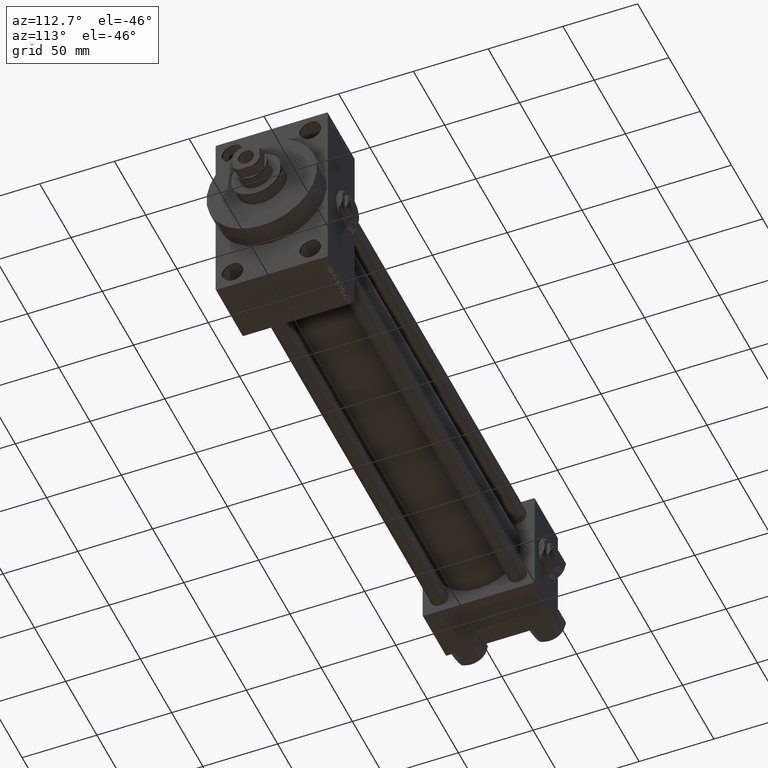
[diagram: clean part render]
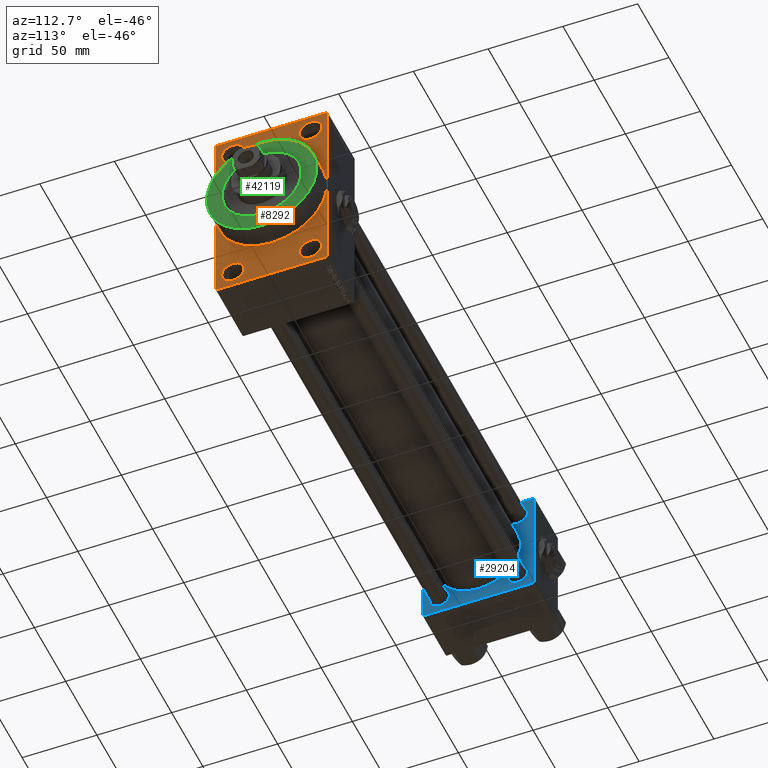
[diagram: same view with three faces highlighted in distinct colors, each labeled with its STEP entity id]
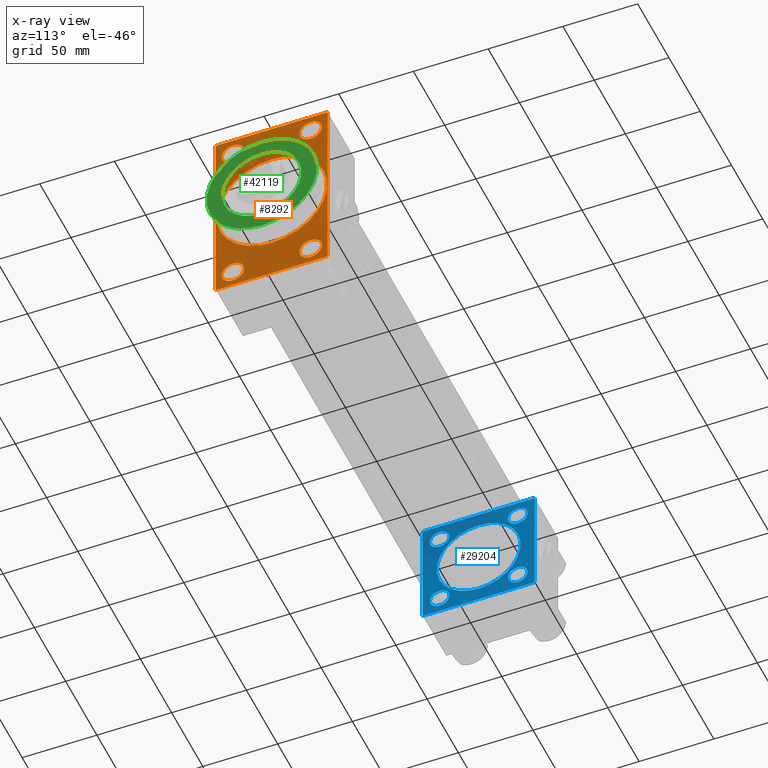
[diagram: x-ray of the same camera — body ghosted, the three highlighted faces saturated]
A machine part, auxiliary view with three faces highlighted in distinct colors.
The next image is the same camera in x-ray (body ghosted, the three faces saturated) — at least one of them is partly hidden behind the body in this view.
Their STEP definitions:

[orange] entity #8292 — the highlighted planar face has unit normal (-1, 0, 0).
#922 = CARTESIAN_POINT ( 'NONE',  ( 367.9999999999999432, -37.49999999999999289, 63.49999999999991473 ) ) ;
#1266 = DIRECTION ( 'NONE',  ( -1.000000000000000000, 0.000000000000000000, -0.000000000000000000 ) ) ;
#1393 = CARTESIAN_POINT ( 'NONE',  ( 367.9999999999999432, -36.99999999999992895, 63.99999999999997158 ) ) ;
#1746 = CIRCLE ( 'NONE', #9716, 7.500000000000062172 ) ;
#1840 = CARTESIAN_POINT ( 'NONE',  ( 367.9999999999999432, 26.00000000000000000, 52.49999999999999289 ) ) ;
#2036 = ORIENTED_EDGE ( 'NONE', *, *, #13621, .T. ) ;
#3274 = FACE_BOUND ( 'NONE', #24315, .T. ) ;
#3364 = VERTEX_POINT ( 'NONE', #26069 ) ;
#3467 = EDGE_CURVE ( 'NONE', #29100, #29794, #47911, .T. ) ;
#3680 = EDGE_CURVE ( 'NONE', #8606, #42703, #4164, .T. ) ;
#4164 = CIRCLE ( 'NONE', #28811, 7.500000000000062172 ) ;
#4853 = DIRECTION ( 'NONE',  ( 0.000000000000000000, 0.000000000000000000, 1.000000000000000000 ) ) ;
#4943 = AXIS2_PLACEMENT_3D ( 'NONE', #19308, #38965, #4853 ) ;
#5241 = CARTESIAN_POINT ( 'NONE',  ( 367.9999999999999432, 37.50000000000000000, 63.99999999999998579 ) ) ;
#5938 = CIRCLE ( 'NONE', #35368, 7.500000000000062172 ) ;
#5943 = VERTEX_POINT ( 'NONE', #35843 ) ;
#6713 = ORIENTED_EDGE ( 'NONE', *, *, #25525, .T. ) ;
#7065 = ORIENTED_EDGE ( 'NONE', *, *, #12248, .T. ) ;
#7091 = DIRECTION ( 'NONE',  ( 1.000000000000000000, 0.000000000000000000, 0.000000000000000000 ) ) ;
#7334 = DIRECTION ( 'NONE',  ( 0.000000000000000000, 0.000000000000000000, -1.000000000000000000 ) ) ;
#7496 = VERTEX_POINT ( 'NONE', #922 ) ;
#7528 = FACE_BOUND ( 'NONE', #23030, .T. ) ;
#8292 = ADVANCED_FACE ( 'NONE', ( #3274, #34629, #41639, #7528, #15704, #22709 ), #30188, .F. ) ;
#8606 = VERTEX_POINT ( 'NONE', #41212 ) ;
#9119 = LINE ( 'NONE', #31777, #44603 ) ;
#9637 = CARTESIAN_POINT ( 'NONE',  ( 367.9999999999999432, 26.00000000000000000, 60.00000000000005684 ) ) ;
#9716 = AXIS2_PLACEMENT_3D ( 'NONE', #9847, #40221, #24548 ) ;
#9847 = CARTESIAN_POINT ( 'NONE',  ( 367.9999999999999432, -25.99999999999999645, 52.50000000000000000 ) ) ;
#10646 = CARTESIAN_POINT ( 'NONE',  ( 367.9999999999999432, -36.99999999999993605, -64.00000000000001421 ) ) ;
#11015 = VECTOR ( 'NONE', #33118, 1000.000000000000000 ) ;
#11073 = VERTEX_POINT ( 'NONE', #48581 ) ;
#11303 = CARTESIAN_POINT ( 'NONE',  ( 367.9999999999999432, 36.99999999999994316, 63.99999999999998579 ) ) ;
#11439 = DIRECTION ( 'NONE',  ( 0.000000000000000000, 0.000000000000000000, 1.000000000000000000 ) ) ;
#11625 = CIRCLE ( 'NONE', #35454, 7.500000000000062172 ) ;
#12037 = DIRECTION ( 'NONE',  ( -1.000000000000000000, 0.000000000000000000, -0.000000000000000000 ) ) ;
#12248 = EDGE_CURVE ( 'NONE', #20474, #41105, #5938, .T. ) ;
#12470 = CARTESIAN_POINT ( 'NONE',  ( 367.9999999999999432, 37.50000000000000000, 63.49999999999998579 ) ) ;
#12708 = ORIENTED_EDGE ( 'NONE', *, *, #38779, .F. ) ;
#12863 = CARTESIAN_POINT ( 'NONE',  ( 367.9999999999999432, 4.531193156845206793E-15, -37.00000000000000000 ) ) ;
#13234 = VECTOR ( 'NONE', #37083, 1000.000000000000000 ) ;
#13279 = DIRECTION ( 'NONE',  ( 0.000000000000000000, 0.000000000000000000, -1.000000000000000000 ) ) ;
#13475 = AXIS2_PLACEMENT_3D ( 'NONE', #29743, #7091, #7334 ) ;
#13621 = EDGE_CURVE ( 'NONE', #42703, #8606, #16313, .T. ) ;
#14237 = EDGE_CURVE ( 'NONE', #29794, #29100, #45047, .T. ) ;
#14651 = ORIENTED_EDGE ( 'NONE', *, *, #14237, .T. ) ;
#14820 = CIRCLE ( 'NONE', #21157, 37.00000000000000000 ) ;
#14940 = CARTESIAN_POINT ( 'NONE',  ( 367.9999999999999432, 26.00000000000000000, -52.49999999999999289 ) ) ;
#15014 = DIRECTION ( 'NONE',  ( 1.000000000000000000, 0.000000000000000000, 0.000000000000000000 ) ) ;
#15704 = FACE_BOUND ( 'NONE', #40985, .T. ) ;
#15707 = ORIENTED_EDGE ( 'NONE', *, *, #27860, .T. ) ;
#16313 = CIRCLE ( 'NONE', #29856, 7.500000000000062172 ) ;
#16464 = DIRECTION ( 'NONE',  ( 0.000000000000000000, 0.000000000000000000, 1.000000000000000000 ) ) ;
#16753 = ORIENTED_EDGE ( 'NONE', *, *, #28570, .F. ) ;
#17289 = DIRECTION ( 'NONE',  ( 0.000000000000000000, 0.000000000000000000, 1.000000000000000000 ) ) ;
#17745 = CARTESIAN_POINT ( 'NONE',  ( 367.9999999999999432, 0.000000000000000000, 0.000000000000000000 ) ) ;
#17962 = AXIS2_PLACEMENT_3D ( 'NONE', #14940, #18166, #11439 ) ;
#17998 = ORIENTED_EDGE ( 'NONE', *, *, #3680, .T. ) ;
#18166 = DIRECTION ( 'NONE',  ( -1.000000000000000000, 0.000000000000000000, -0.000000000000000000 ) ) ;
#18676 = VERTEX_POINT ( 'NONE', #20612 ) ;
#18751 = DIRECTION ( 'NONE',  ( 0.000000000000000000, 0.000000000000000000, -1.000000000000000000 ) ) ;
#19203 = DIRECTION ( 'NONE',  ( -0.000000000000000000, 0.000000000000000000, 1.000000000000000000 ) ) ;
#19308 = CARTESIAN_POINT ( 'NONE',  ( 367.9999999999999432, 26.00000000000000000, -52.49999999999999289 ) ) ;
#19564 = EDGE_CURVE ( 'NONE', #18676, #11073, #1746, .T. ) ;
#19646 = ORIENTED_EDGE ( 'NONE', *, *, #36205, .F. ) ;
#19817 = EDGE_CURVE ( 'NONE', #7496, #40708, #24494, .T. ) ;
#19857 = DIRECTION ( 'NONE',  ( 0.000000000000000000, 0.000000000000000000, 1.000000000000000000 ) ) ;
#20395 = VERTEX_POINT ( 'NONE', #45234 ) ;
#20474 = VERTEX_POINT ( 'NONE', #9637 ) ;
#20612 = CARTESIAN_POINT ( 'NONE',  ( 367.9999999999999432, -25.99999999999999645, 44.99999999999993605 ) ) ;
#20830 = CARTESIAN_POINT ( 'NONE',  ( 367.9999999999999432, 26.00000000000000000, 52.49999999999999289 ) ) ;
#21055 = DIRECTION ( 'NONE',  ( 0.000000000000000000, -0.7071067811865867636, 0.7071067811865081598 ) ) ;
#21157 = AXIS2_PLACEMENT_3D ( 'NONE', #17745, #15014, #18751 ) ;
#21167 = ORIENTED_EDGE ( 'NONE', *, *, #41965, .T. ) ;
#21519 = CARTESIAN_POINT ( 'NONE',  ( 367.9999999999999432, -25.99999999999999645, 52.50000000000000000 ) ) ;
#21768 = DIRECTION ( 'NONE',  ( -1.000000000000000000, 0.000000000000000000, -0.000000000000000000 ) ) ;
#21900 = CARTESIAN_POINT ( 'NONE',  ( 367.9999999999999432, 37.49999999999999289, -64.00000000000000000 ) ) ;
#22451 = ORIENTED_EDGE ( 'NONE', *, *, #32102, .F. ) ;
#22458 = DIRECTION ( 'NONE',  ( -1.000000000000000000, 0.000000000000000000, -0.000000000000000000 ) ) ;
#22528 = DIRECTION ( 'NONE',  ( 0.000000000000000000, 0.000000000000000000, 1.000000000000000000 ) ) ;
#22709 = FACE_OUTER_BOUND ( 'NONE', #30671, .T. ) ;
#22752 = CARTESIAN_POINT ( 'NONE',  ( 367.9999999999999432, 26.00000000000000000, -60.00000000000005684 ) ) ;
#23030 = EDGE_LOOP ( 'NONE', ( #15707, #7065 ) ) ;
#23116 = VECTOR ( 'NONE', #48835, 1000.000000000000114 ) ;
#23660 = ORIENTED_EDGE ( 'NONE', *, *, #19817, .T. ) ;
#23909 = ORIENTED_EDGE ( 'NONE', *, *, #42541, .T. ) ;
#24261 = VECTOR ( 'NONE', #39103, 1000.000000000000000 ) ;
#24315 = EDGE_LOOP ( 'NONE', ( #27627, #45707 ) ) ;
#24357 = VERTEX_POINT ( 'NONE', #31201 ) ;
#24494 = LINE ( 'NONE', #31715, #43969 ) ;
#24506 = VECTOR ( 'NONE', #26092, 1000.000000000000114 ) ;
#24548 = DIRECTION ( 'NONE',  ( 0.000000000000000000, 0.000000000000000000, 1.000000000000000000 ) ) ;
#24756 = DIRECTION ( 'NONE',  ( -1.000000000000000000, 0.000000000000000000, -0.000000000000000000 ) ) ;
#24880 = VERTEX_POINT ( 'NONE', #12470 ) ;
#25149 = LINE ( 'NONE', #28889, #11015 ) ;
#25525 = EDGE_CURVE ( 'NONE', #27002, #32451, #43346, .T. ) ;
#26069 = CARTESIAN_POINT ( 'NONE',  ( 367.9999999999999432, 36.99999999999993605, -64.00000000000000000 ) ) ;
#26092 = DIRECTION ( 'NONE',  ( 0.000000000000000000, 0.7071067811865965336, -0.7071067811864985009 ) ) ;
#26134 = LINE ( 'NONE', #21900, #13234 ) ;
#26598 = VERTEX_POINT ( 'NONE', #12863 ) ;
#27002 = VERTEX_POINT ( 'NONE', #11303 ) ;
#27280 = DIRECTION ( 'NONE',  ( -0.000000000000000000, -0.7071067811865524577, -0.7071067811865426878 ) ) ;
#27569 = VECTOR ( 'NONE', #27280, 1000.000000000000000 ) ;
#27627 = ORIENTED_EDGE ( 'NONE', *, *, #19564, .T. ) ;
#27860 = EDGE_CURVE ( 'NONE', #41105, #20474, #36268, .T. ) ;
#27885 = EDGE_CURVE ( 'NONE', #11073, #18676, #11625, .T. ) ;
#28570 = EDGE_CURVE ( 'NONE', #3364, #5943, #26134, .T. ) ;
#28811 = AXIS2_PLACEMENT_3D ( 'NONE', #35387, #1266, #16464 ) ;
#28842 = EDGE_CURVE ( 'NONE', #32451, #7496, #44272, .T. ) ;
#28889 = CARTESIAN_POINT ( 'NONE',  ( 367.9999999999999432, 37.50000000000000000, 63.99999999999998579 ) ) ;
#28971 = CARTESIAN_POINT ( 'NONE',  ( 367.9999999999999432, 37.49999999999999289, -63.50000000000001421 ) ) ;
#29005 = DIRECTION ( 'NONE',  ( 0.000000000000000000, 0.000000000000000000, 1.000000000000000000 ) ) ;
#29100 = VERTEX_POINT ( 'NONE', #22752 ) ;
#29577 = LINE ( 'NONE', #10646, #24506 ) ;
#29743 = CARTESIAN_POINT ( 'NONE',  ( 367.9999999999999432, 0.000000000000000000, 0.000000000000000000 ) ) ;
#29794 = VERTEX_POINT ( 'NONE', #41798 ) ;
#29856 = AXIS2_PLACEMENT_3D ( 'NONE', #46158, #12037, #22528 ) ;
#30188 = PLANE ( 'NONE',  #47297 ) ;
#30671 = EDGE_LOOP ( 'NONE', ( #23660, #43440, #16753, #21167, #19646, #23909, #6713, #39570 ) ) ;
#31053 = EDGE_LOOP ( 'NONE', ( #2036, #17998 ) ) ;
#31201 = CARTESIAN_POINT ( 'NONE',  ( 367.9999999999999432, 37.49999999999999289, -63.50000000000001421 ) ) ;
#31715 = CARTESIAN_POINT ( 'NONE',  ( 367.9999999999999432, -37.49999999999999289, 63.99999999999997158 ) ) ;
#31777 = CARTESIAN_POINT ( 'NONE',  ( 367.9999999999999432, 36.99999999999994316, 63.99999999999998579 ) ) ;
#32102 = EDGE_CURVE ( 'NONE', #20395, #26598, #14820, .T. ) ;
#32451 = VERTEX_POINT ( 'NONE', #1393 ) ;
#32985 = EDGE_LOOP ( 'NONE', ( #39550, #14651 ) ) ;
#33118 = DIRECTION ( 'NONE',  ( 0.000000000000000000, -5.421010862427522170E-17, -1.000000000000000000 ) ) ;
#34629 = FACE_BOUND ( 'NONE', #31053, .T. ) ;
#35368 = AXIS2_PLACEMENT_3D ( 'NONE', #20830, #36019, #19857 ) ;
#35387 = CARTESIAN_POINT ( 'NONE',  ( 367.9999999999999432, -25.99999999999999645, -52.49999999999999289 ) ) ;
#35454 = AXIS2_PLACEMENT_3D ( 'NONE', #21519, #21768, #29005 ) ;
#35843 = CARTESIAN_POINT ( 'NONE',  ( 367.9999999999999432, -36.99999999999993605, -64.00000000000001421 ) ) ;
#36019 = DIRECTION ( 'NONE',  ( -1.000000000000000000, 0.000000000000000000, -0.000000000000000000 ) ) ;
#36205 = EDGE_CURVE ( 'NONE', #24880, #24357, #25149, .T. ) ;
#36268 = CIRCLE ( 'NONE', #37060, 7.500000000000062172 ) ;
#36585 = EDGE_CURVE ( 'NONE', #40708, #5943, #29577, .T. ) ;
#36856 = LINE ( 'NONE', #28971, #23116 ) ;
#37060 = AXIS2_PLACEMENT_3D ( 'NONE', #1840, #24756, #17289 ) ;
#37083 = DIRECTION ( 'NONE',  ( 0.000000000000000000, -1.000000000000000000, -1.850371707708594563E-16 ) ) ;
#37397 = CARTESIAN_POINT ( 'NONE',  ( 367.9999999999999432, 0.000000000000000000, 0.000000000000000000 ) ) ;
#38779 = EDGE_CURVE ( 'NONE', #26598, #20395, #43713, .T. ) ;
#38965 = DIRECTION ( 'NONE',  ( -1.000000000000000000, 0.000000000000000000, -0.000000000000000000 ) ) ;
#39103 = DIRECTION ( 'NONE',  ( 0.000000000000000000, -1.000000000000000000, -1.850371707708594563E-16 ) ) ;
#39550 = ORIENTED_EDGE ( 'NONE', *, *, #3467, .T. ) ;
#39570 = ORIENTED_EDGE ( 'NONE', *, *, #28842, .T. ) ;
#40221 = DIRECTION ( 'NONE',  ( -1.000000000000000000, 0.000000000000000000, -0.000000000000000000 ) ) ;
#40708 = VERTEX_POINT ( 'NONE', #42364 ) ;
#40985 = EDGE_LOOP ( 'NONE', ( #22451, #12708 ) ) ;
#41105 = VERTEX_POINT ( 'NONE', #45574 ) ;
#41212 = CARTESIAN_POINT ( 'NONE',  ( 367.9999999999999432, -25.99999999999999645, -44.99999999999992895 ) ) ;
#41639 = FACE_BOUND ( 'NONE', #32985, .T. ) ;
#41798 = CARTESIAN_POINT ( 'NONE',  ( 367.9999999999999432, 26.00000000000000000, -44.99999999999992895 ) ) ;
#41965 = EDGE_CURVE ( 'NONE', #3364, #24357, #36856, .T. ) ;
#42364 = CARTESIAN_POINT ( 'NONE',  ( 367.9999999999999432, -37.49999999999999289, -63.50000000000002842 ) ) ;
#42541 = EDGE_CURVE ( 'NONE', #24880, #27002, #9119, .T. ) ;
#42703 = VERTEX_POINT ( 'NONE', #48465 ) ;
#43346 = LINE ( 'NONE', #5241, #24261 ) ;
#43440 = ORIENTED_EDGE ( 'NONE', *, *, #36585, .T. ) ;
#43713 = CIRCLE ( 'NONE', #13475, 37.00000000000000000 ) ;
#43969 = VECTOR ( 'NONE', #13279, 1000.000000000000000 ) ;
#44272 = LINE ( 'NONE', #45745, #27569 ) ;
#44603 = VECTOR ( 'NONE', #21055, 1000.000000000000000 ) ;
#45047 = CIRCLE ( 'NONE', #17962, 7.500000000000062172 ) ;
#45234 = CARTESIAN_POINT ( 'NONE',  ( 367.9999999999999432, 0.000000000000000000, 37.00000000000000000 ) ) ;
#45574 = CARTESIAN_POINT ( 'NONE',  ( 367.9999999999999432, 26.00000000000000000, 44.99999999999992895 ) ) ;
#45707 = ORIENTED_EDGE ( 'NONE', *, *, #27885, .T. ) ;
#45745 = CARTESIAN_POINT ( 'NONE',  ( 367.9999999999999432, -37.49999999999999289, 63.49999999999991473 ) ) ;
#46158 = CARTESIAN_POINT ( 'NONE',  ( 367.9999999999999432, -25.99999999999999645, -52.49999999999999289 ) ) ;
#47297 = AXIS2_PLACEMENT_3D ( 'NONE', #37397, #22458, #19203 ) ;
#47911 = CIRCLE ( 'NONE', #4943, 7.500000000000062172 ) ;
#48465 = CARTESIAN_POINT ( 'NONE',  ( 367.9999999999999432, -25.99999999999999645, -60.00000000000005684 ) ) ;
#48581 = CARTESIAN_POINT ( 'NONE',  ( 367.9999999999999432, -25.99999999999999645, 60.00000000000005684 ) ) ;
#48835 = DIRECTION ( 'NONE',  ( -0.000000000000000000, 0.7071067811865965336, 0.7071067811864985009 ) ) ;

[blue] entity #29204 — the highlighted planar face has unit normal (-1, 0, 0).
#124 = LINE ( 'NONE', #27765, #24076 ) ;
#444 = CARTESIAN_POINT ( 'NONE',  ( 37.00000000000000000, 37.49999999999999289, 37.50000000000000000 ) ) ;
#837 = VERTEX_POINT ( 'NONE', #21453 ) ;
#1035 = VECTOR ( 'NONE', #46607, 1000.000000000000000 ) ;
#1073 = ORIENTED_EDGE ( 'NONE', *, *, #21554, .T. ) ;
#1185 = CARTESIAN_POINT ( 'NONE',  ( 37.00000000000000000, -37.00000000000000711, 37.49999999999999289 ) ) ;
#1441 = DIRECTION ( 'NONE',  ( 0.000000000000000000, 0.000000000000000000, 1.000000000000000000 ) ) ;
#1776 = CIRCLE ( 'NONE', #14488, 6.499999999999946709 ) ;
#1884 = ORIENTED_EDGE ( 'NONE', *, *, #29770, .F. ) ;
#2477 = VERTEX_POINT ( 'NONE', #23465 ) ;
#2672 = VERTEX_POINT ( 'NONE', #7511 ) ;
#3347 = DIRECTION ( 'NONE',  ( 0.000000000000000000, 0.000000000000000000, 1.000000000000000000 ) ) ;
#3351 = EDGE_CURVE ( 'NONE', #21176, #41554, #1776, .T. ) ;
#3598 = CARTESIAN_POINT ( 'NONE',  ( 37.00000000000000000, 37.49999999999999289, 37.50000000000000000 ) ) ;
#3620 = AXIS2_PLACEMENT_3D ( 'NONE', #34006, #34719, #45229 ) ;
#4114 = EDGE_CURVE ( 'NONE', #29648, #2477, #124, .T. ) ;
#4237 = CIRCLE ( 'NONE', #32062, 6.499999999999953815 ) ;
#4402 = CARTESIAN_POINT ( 'NONE',  ( 36.99999999999997868, -2.602085213965210642E-15, 0.000000000000000000 ) ) ;
#4920 = LINE ( 'NONE', #444, #39567 ) ;
#5264 = AXIS2_PLACEMENT_3D ( 'NONE', #27989, #43441, #39916 ) ;
#5568 = CARTESIAN_POINT ( 'NONE',  ( 37.00000000000000000, -26.14999999999999147, 26.15000000000000924 ) ) ;
#5653 = EDGE_CURVE ( 'NONE', #19958, #12942, #4237, .T. ) ;
#5914 = VECTOR ( 'NONE', #12275, 1000.000000000000000 ) ;
#6309 = ORIENTED_EDGE ( 'NONE', *, *, #47365, .T. ) ;
#6437 = CARTESIAN_POINT ( 'NONE',  ( 37.00000000000000000, 37.49999999999999289, 37.00000000000000000 ) ) ;
#7107 = CARTESIAN_POINT ( 'NONE',  ( 37.00000000000000000, -26.14999999999999147, -26.15000000000000924 ) ) ;
#7367 = FACE_OUTER_BOUND ( 'NONE', #10193, .T. ) ;
#7491 = CARTESIAN_POINT ( 'NONE',  ( 37.00000000000000000, -26.14999999999999147, 32.64999999999996305 ) ) ;
#7511 = CARTESIAN_POINT ( 'NONE',  ( 37.00000000000000000, 26.14999999999999858, 32.65000000000001279 ) ) ;
#7620 = FACE_BOUND ( 'NONE', #36834, .T. ) ;
#7726 = DIRECTION ( 'NONE',  ( 0.000000000000000000, 0.000000000000000000, 1.000000000000000000 ) ) ;
#8485 = CARTESIAN_POINT ( 'NONE',  ( 37.00000000000000000, -26.14999999999999147, 19.65000000000005542 ) ) ;
#8654 = EDGE_CURVE ( 'NONE', #41554, #21176, #31405, .T. ) ;
#8789 = AXIS2_PLACEMENT_3D ( 'NONE', #47028, #8916, #1441 ) ;
#8916 = DIRECTION ( 'NONE',  ( -1.000000000000000000, 0.000000000000000000, -0.000000000000000000 ) ) ;
#9373 = EDGE_CURVE ( 'NONE', #20607, #21622, #17893, .T. ) ;
#9511 = CARTESIAN_POINT ( 'NONE',  ( 37.00000000000000000, -26.14999999999999147, 26.15000000000000924 ) ) ;
#9801 = LINE ( 'NONE', #38943, #22753 ) ;
#10083 = EDGE_CURVE ( 'NONE', #44798, #19461, #32310, .T. ) ;
#10193 = EDGE_LOOP ( 'NONE', ( #43303, #47431, #14101, #26155, #31537, #6309, #48921, #1073 ) ) ;
#10229 = EDGE_LOOP ( 'NONE', ( #27794, #26113 ) ) ;
#10774 = CARTESIAN_POINT ( 'NONE',  ( 37.00000000000000000, -26.14999999999999147, -32.64999999999995595 ) ) ;
#11188 = CIRCLE ( 'NONE', #8789, 6.500000000000002665 ) ;
#11586 = FACE_BOUND ( 'NONE', #43605, .T. ) ;
#12275 = DIRECTION ( 'NONE',  ( 0.000000000000000000, 9.251858538542971581E-17, -1.000000000000000000 ) ) ;
#12942 = VERTEX_POINT ( 'NONE', #8485 ) ;
#14101 = ORIENTED_EDGE ( 'NONE', *, *, #34695, .F. ) ;
#14488 = AXIS2_PLACEMENT_3D ( 'NONE', #37265, #48740, #34263 ) ;
#15515 = AXIS2_PLACEMENT_3D ( 'NONE', #26630, #33607, #7726 ) ;
#15551 = FACE_BOUND ( 'NONE', #20002, .T. ) ;
#15602 = EDGE_CURVE ( 'NONE', #21622, #20607, #40239, .T. ) ;
#16084 = VERTEX_POINT ( 'NONE', #38824 ) ;
#16198 = CARTESIAN_POINT ( 'NONE',  ( 37.00000000000000000, -37.00000000000002132, -37.50000000000000711 ) ) ;
#16247 = LINE ( 'NONE', #35424, #5914 ) ;
#16729 = DIRECTION ( 'NONE',  ( -1.000000000000000000, 0.000000000000000000, -0.000000000000000000 ) ) ;
#16867 = ORIENTED_EDGE ( 'NONE', *, *, #41204, .T. ) ;
#17893 = CIRCLE ( 'NONE', #15515, 6.500000000000002665 ) ;
#18492 = VERTEX_POINT ( 'NONE', #1185 ) ;
#19405 = ORIENTED_EDGE ( 'NONE', *, *, #44180, .F. ) ;
#19461 = VERTEX_POINT ( 'NONE', #45284 ) ;
#19486 = CARTESIAN_POINT ( 'NONE',  ( 37.00000000000000000, -37.50000000000000000, -37.00000000000003553 ) ) ;
#19958 = VERTEX_POINT ( 'NONE', #7491 ) ;
#20002 = EDGE_LOOP ( 'NONE', ( #33369, #43545 ) ) ;
#20607 = VERTEX_POINT ( 'NONE', #34049 ) ;
#20613 = CARTESIAN_POINT ( 'NONE',  ( 37.00000000000000000, 37.49999999999999289, -36.99999999999998579 ) ) ;
#21124 = CIRCLE ( 'NONE', #29073, 6.500000000000002665 ) ;
#21176 = VERTEX_POINT ( 'NONE', #10774 ) ;
#21435 = DIRECTION ( 'NONE',  ( 0.000000000000000000, 0.000000000000000000, 1.000000000000000000 ) ) ;
#21453 = CARTESIAN_POINT ( 'NONE',  ( 37.00000000000000000, -37.50000000000000711, 36.99999999999999289 ) ) ;
#21554 = EDGE_CURVE ( 'NONE', #37785, #37348, #35126, .T. ) ;
#21622 = VERTEX_POINT ( 'NONE', #33366 ) ;
#22753 = VECTOR ( 'NONE', #28241, 1000.000000000000000 ) ;
#23095 = DIRECTION ( 'NONE',  ( 1.000000000000000000, -0.000000000000000000, 0.000000000000000000 ) ) ;
#23465 = CARTESIAN_POINT ( 'NONE',  ( 37.00000000000000000, 36.99999999999999289, 37.50000000000000000 ) ) ;
#23608 = DIRECTION ( 'NONE',  ( 0.000000000000000000, -1.000000000000000000, -9.251858538542971581E-17 ) ) ;
#24076 = VECTOR ( 'NONE', #42218, 1000.000000000000114 ) ;
#24348 = EDGE_CURVE ( 'NONE', #837, #37785, #16247, .T. ) ;
#24665 = CIRCLE ( 'NONE', #38985, 28.00000000000000000 ) ;
#26113 = ORIENTED_EDGE ( 'NONE', *, *, #8654, .T. ) ;
#26155 = ORIENTED_EDGE ( 'NONE', *, *, #4114, .T. ) ;
#26283 = FACE_BOUND ( 'NONE', #46530, .T. ) ;
#26580 = EDGE_CURVE ( 'NONE', #16084, #2672, #21124, .T. ) ;
#26597 = DIRECTION ( 'NONE',  ( 0.000000000000000000, 0.000000000000000000, 1.000000000000000000 ) ) ;
#26630 = CARTESIAN_POINT ( 'NONE',  ( 37.00000000000000000, 26.14999999999999858, -26.15000000000000213 ) ) ;
#26685 = VECTOR ( 'NONE', #43779, 1000.000000000000114 ) ;
#27488 = VERTEX_POINT ( 'NONE', #32352 ) ;
#27765 = CARTESIAN_POINT ( 'NONE',  ( 37.00000000000000000, 36.99999999999999289, 37.50000000000000000 ) ) ;
#27794 = ORIENTED_EDGE ( 'NONE', *, *, #3351, .T. ) ;
#27989 = CARTESIAN_POINT ( 'NONE',  ( 37.00000000000000000, 26.14999999999999858, -26.15000000000000213 ) ) ;
#28241 = DIRECTION ( 'NONE',  ( 0.000000000000000000, -1.000000000000000000, -9.251858538542972814E-17 ) ) ;
#28855 = VECTOR ( 'NONE', #44383, 1000.000000000000114 ) ;
#29073 = AXIS2_PLACEMENT_3D ( 'NONE', #39509, #35531, #46994 ) ;
#29204 = ADVANCED_FACE ( 'NONE', ( #30032, #7620, #15551, #26283, #11586, #7367 ), #45469, .F. ) ;
#29648 = VERTEX_POINT ( 'NONE', #6437 ) ;
#29770 = EDGE_CURVE ( 'NONE', #47332, #27488, #47377, .T. ) ;
#30032 = FACE_BOUND ( 'NONE', #10229, .T. ) ;
#30261 = EDGE_CURVE ( 'NONE', #44798, #37348, #9801, .T. ) ;
#30336 = ORIENTED_EDGE ( 'NONE', *, *, #9373, .T. ) ;
#31299 = CARTESIAN_POINT ( 'NONE',  ( 37.00000000000000000, 36.99999999999997868, -37.50000000000000000 ) ) ;
#31405 = CIRCLE ( 'NONE', #40969, 6.499999999999946709 ) ;
#31537 = ORIENTED_EDGE ( 'NONE', *, *, #35361, .T. ) ;
#32062 = AXIS2_PLACEMENT_3D ( 'NONE', #9511, #16729, #35902 ) ;
#32310 = LINE ( 'NONE', #20613, #26685 ) ;
#32352 = CARTESIAN_POINT ( 'NONE',  ( 36.99999999999997868, -2.602085213965210642E-15, 28.00000000000000000 ) ) ;
#32752 = EDGE_CURVE ( 'NONE', #12942, #19958, #37130, .T. ) ;
#32909 = LINE ( 'NONE', #36633, #28855 ) ;
#33366 = CARTESIAN_POINT ( 'NONE',  ( 37.00000000000000000, 26.14999999999999858, -32.65000000000000568 ) ) ;
#33369 = ORIENTED_EDGE ( 'NONE', *, *, #32752, .T. ) ;
#33607 = DIRECTION ( 'NONE',  ( -1.000000000000000000, 0.000000000000000000, -0.000000000000000000 ) ) ;
#33636 = CARTESIAN_POINT ( 'NONE',  ( 36.99999999999997868, -2.602085213965210642E-15, 0.000000000000000000 ) ) ;
#34006 = CARTESIAN_POINT ( 'NONE',  ( 37.00000000000000000, 0.000000000000000000, 0.000000000000000000 ) ) ;
#34049 = CARTESIAN_POINT ( 'NONE',  ( 37.00000000000000000, 26.14999999999999858, -19.65000000000000213 ) ) ;
#34263 = DIRECTION ( 'NONE',  ( 0.000000000000000000, 0.000000000000000000, 1.000000000000000000 ) ) ;
#34447 = DIRECTION ( 'NONE',  ( 0.000000000000000000, 0.000000000000000000, -1.000000000000000000 ) ) ;
#34695 = EDGE_CURVE ( 'NONE', #29648, #19461, #45209, .T. ) ;
#34719 = DIRECTION ( 'NONE',  ( -1.000000000000000000, 0.000000000000000000, -0.000000000000000000 ) ) ;
#34739 = AXIS2_PLACEMENT_3D ( 'NONE', #5568, #36181, #39436 ) ;
#35126 = LINE ( 'NONE', #16198, #1035 ) ;
#35361 = EDGE_CURVE ( 'NONE', #2477, #18492, #4920, .T. ) ;
#35417 = AXIS2_PLACEMENT_3D ( 'NONE', #4402, #23095, #26597 ) ;
#35424 = CARTESIAN_POINT ( 'NONE',  ( 37.00000000000000000, -37.50000000000000711, 37.49999999999999289 ) ) ;
#35531 = DIRECTION ( 'NONE',  ( -1.000000000000000000, 0.000000000000000000, -0.000000000000000000 ) ) ;
#35902 = DIRECTION ( 'NONE',  ( 0.000000000000000000, 0.000000000000000000, 1.000000000000000000 ) ) ;
#36181 = DIRECTION ( 'NONE',  ( -1.000000000000000000, 0.000000000000000000, -0.000000000000000000 ) ) ;
#36504 = CARTESIAN_POINT ( 'NONE',  ( 37.00000000000000000, -37.00000000000002132, -37.50000000000000711 ) ) ;
#36633 = CARTESIAN_POINT ( 'NONE',  ( 37.00000000000000000, -37.50000000000000711, 36.99999999999999289 ) ) ;
#36714 = DIRECTION ( 'NONE',  ( -1.000000000000000000, 0.000000000000000000, -0.000000000000000000 ) ) ;
#36834 = EDGE_LOOP ( 'NONE', ( #38476, #30336 ) ) ;
#37130 = CIRCLE ( 'NONE', #34739, 6.499999999999953815 ) ;
#37265 = CARTESIAN_POINT ( 'NONE',  ( 37.00000000000000000, -26.14999999999999147, -26.15000000000000924 ) ) ;
#37348 = VERTEX_POINT ( 'NONE', #36504 ) ;
#37785 = VERTEX_POINT ( 'NONE', #19486 ) ;
#38476 = ORIENTED_EDGE ( 'NONE', *, *, #15602, .T. ) ;
#38824 = CARTESIAN_POINT ( 'NONE',  ( 37.00000000000000000, 26.14999999999999858, 19.64999999999999858 ) ) ;
#38943 = CARTESIAN_POINT ( 'NONE',  ( 37.00000000000000000, 37.49999999999999289, -37.50000000000000000 ) ) ;
#38985 = AXIS2_PLACEMENT_3D ( 'NONE', #33636, #48847, #21435 ) ;
#39238 = CARTESIAN_POINT ( 'NONE',  ( 37.00000000000000000, -26.14999999999999147, -19.65000000000006253 ) ) ;
#39436 = DIRECTION ( 'NONE',  ( 0.000000000000000000, 0.000000000000000000, 1.000000000000000000 ) ) ;
#39509 = CARTESIAN_POINT ( 'NONE',  ( 37.00000000000000000, 26.14999999999999858, 26.15000000000000213 ) ) ;
#39567 = VECTOR ( 'NONE', #23608, 1000.000000000000000 ) ;
#39687 = ORIENTED_EDGE ( 'NONE', *, *, #26580, .T. ) ;
#39916 = DIRECTION ( 'NONE',  ( 0.000000000000000000, 0.000000000000000000, 1.000000000000000000 ) ) ;
#40239 = CIRCLE ( 'NONE', #5264, 6.500000000000002665 ) ;
#40969 = AXIS2_PLACEMENT_3D ( 'NONE', #7107, #36714, #3347 ) ;
#41204 = EDGE_CURVE ( 'NONE', #2672, #16084, #11188, .T. ) ;
#41554 = VERTEX_POINT ( 'NONE', #39238 ) ;
#42218 = DIRECTION ( 'NONE',  ( 0.000000000000000000, -0.7071067811865474617, 0.7071067811865474617 ) ) ;
#42778 = VECTOR ( 'NONE', #34447, 1000.000000000000000 ) ;
#43303 = ORIENTED_EDGE ( 'NONE', *, *, #30261, .F. ) ;
#43441 = DIRECTION ( 'NONE',  ( -1.000000000000000000, 0.000000000000000000, -0.000000000000000000 ) ) ;
#43545 = ORIENTED_EDGE ( 'NONE', *, *, #5653, .T. ) ;
#43605 = EDGE_LOOP ( 'NONE', ( #19405, #1884 ) ) ;
#43779 = DIRECTION ( 'NONE',  ( -0.000000000000000000, 0.7071067811865474617, 0.7071067811865474617 ) ) ;
#44132 = CARTESIAN_POINT ( 'NONE',  ( 36.99999999999997868, 8.269258236473784371E-16, -28.00000000000000000 ) ) ;
#44180 = EDGE_CURVE ( 'NONE', #27488, #47332, #24665, .T. ) ;
#44383 = DIRECTION ( 'NONE',  ( -0.000000000000000000, -0.7071067811865474617, -0.7071067811865474617 ) ) ;
#44798 = VERTEX_POINT ( 'NONE', #31299 ) ;
#45209 = LINE ( 'NONE', #3598, #42778 ) ;
#45229 = DIRECTION ( 'NONE',  ( -0.000000000000000000, 0.000000000000000000, 1.000000000000000000 ) ) ;
#45284 = CARTESIAN_POINT ( 'NONE',  ( 37.00000000000000000, 37.49999999999999289, -36.99999999999998579 ) ) ;
#45469 = PLANE ( 'NONE',  #3620 ) ;
#46530 = EDGE_LOOP ( 'NONE', ( #39687, #16867 ) ) ;
#46607 = DIRECTION ( 'NONE',  ( 0.000000000000000000, 0.7071067811865524577, -0.7071067811865426878 ) ) ;
#46994 = DIRECTION ( 'NONE',  ( 0.000000000000000000, 0.000000000000000000, 1.000000000000000000 ) ) ;
#47028 = CARTESIAN_POINT ( 'NONE',  ( 37.00000000000000000, 26.14999999999999858, 26.15000000000000213 ) ) ;
#47332 = VERTEX_POINT ( 'NONE', #44132 ) ;
#47365 = EDGE_CURVE ( 'NONE', #18492, #837, #32909, .T. ) ;
#47377 = CIRCLE ( 'NONE', #35417, 28.00000000000000000 ) ;
#47431 = ORIENTED_EDGE ( 'NONE', *, *, #10083, .T. ) ;
#48740 = DIRECTION ( 'NONE',  ( -1.000000000000000000, 0.000000000000000000, -0.000000000000000000 ) ) ;
#48847 = DIRECTION ( 'NONE',  ( 1.000000000000000000, -0.000000000000000000, 0.000000000000000000 ) ) ;
#48921 = ORIENTED_EDGE ( 'NONE', *, *, #24348, .T. ) ;

[green] entity #42119 — the highlighted planar face has unit normal (1, 0, 0).
#1053 = DIRECTION ( 'NONE',  ( 1.000000000000000000, 0.000000000000000000, 0.000000000000000000 ) ) ;
#1148 = VERTEX_POINT ( 'NONE', #7745 ) ;
#4696 = DIRECTION ( 'NONE',  ( 1.000000000000000000, 0.000000000000000000, 0.000000000000000000 ) ) ;
#4939 = DIRECTION ( 'NONE',  ( 0.000000000000000000, 0.000000000000000000, -1.000000000000000000 ) ) ;
#5537 = CARTESIAN_POINT ( 'NONE',  ( 383.9999999999999432, 0.000000000000000000, 0.000000000000000000 ) ) ;
#5816 = AXIS2_PLACEMENT_3D ( 'NONE', #46823, #35099, #9201 ) ;
#7661 = DIRECTION ( 'NONE',  ( 0.000000000000000000, 0.000000000000000000, -1.000000000000000000 ) ) ;
#7745 = CARTESIAN_POINT ( 'NONE',  ( 383.9999999999999432, 4.531193156845206793E-15, -37.00000000000000000 ) ) ;
#7961 = PLANE ( 'NONE',  #16735 ) ;
#9201 = DIRECTION ( 'NONE',  ( 0.000000000000000000, 0.000000000000000000, -1.000000000000000000 ) ) ;
#9565 = CARTESIAN_POINT ( 'NONE',  ( 383.9999999999999432, 0.000000000000000000, -26.50000000000000355 ) ) ;
#13092 = CIRCLE ( 'NONE', #41741, 37.00000000000000000 ) ;
#15113 = CARTESIAN_POINT ( 'NONE',  ( 383.9999999999999432, 0.000000000000000000, 0.000000000000000000 ) ) ;
#16498 = DIRECTION ( 'NONE',  ( 0.000000000000000000, 0.000000000000000000, -1.000000000000000000 ) ) ;
#16735 = AXIS2_PLACEMENT_3D ( 'NONE', #38807, #4696, #4939 ) ;
#17722 = CIRCLE ( 'NONE', #5816, 26.50000000000000355 ) ;
#19347 = ORIENTED_EDGE ( 'NONE', *, *, #47571, .F. ) ;
#22838 = DIRECTION ( 'NONE',  ( 1.000000000000000000, 0.000000000000000000, 0.000000000000000000 ) ) ;
#23169 = DIRECTION ( 'NONE',  ( 0.000000000000000000, 0.000000000000000000, -1.000000000000000000 ) ) ;
#24413 = EDGE_CURVE ( 'NONE', #46598, #1148, #13092, .T. ) ;
#24668 = CARTESIAN_POINT ( 'NONE',  ( 383.9999999999999432, 3.245314017740486554E-15, 26.50000000000000355 ) ) ;
#25520 = ORIENTED_EDGE ( 'NONE', *, *, #28928, .F. ) ;
#26942 = VERTEX_POINT ( 'NONE', #9565 ) ;
#27120 = FACE_BOUND ( 'NONE', #44167, .T. ) ;
#28928 = EDGE_CURVE ( 'NONE', #26942, #49311, #37889, .T. ) ;
#33022 = ORIENTED_EDGE ( 'NONE', *, *, #39138, .T. ) ;
#34616 = DIRECTION ( 'NONE',  ( 1.000000000000000000, 0.000000000000000000, 0.000000000000000000 ) ) ;
#35099 = DIRECTION ( 'NONE',  ( 1.000000000000000000, 0.000000000000000000, 0.000000000000000000 ) ) ;
#35156 = ORIENTED_EDGE ( 'NONE', *, *, #24413, .T. ) ;
#36171 = EDGE_LOOP ( 'NONE', ( #35156, #33022 ) ) ;
#37094 = AXIS2_PLACEMENT_3D ( 'NONE', #15113, #22838, #7661 ) ;
#37339 = AXIS2_PLACEMENT_3D ( 'NONE', #45855, #34616, #23169 ) ;
#37889 = CIRCLE ( 'NONE', #37094, 26.50000000000000355 ) ;
#38807 = CARTESIAN_POINT ( 'NONE',  ( 383.9999999999999432, 0.000000000000000000, 0.000000000000000000 ) ) ;
#39138 = EDGE_CURVE ( 'NONE', #1148, #46598, #42110, .T. ) ;
#41741 = AXIS2_PLACEMENT_3D ( 'NONE', #5537, #1053, #16498 ) ;
#42110 = CIRCLE ( 'NONE', #37339, 37.00000000000000000 ) ;
#42119 = ADVANCED_FACE ( 'NONE', ( #27120, #42804 ), #7961, .T. ) ;
#42804 = FACE_OUTER_BOUND ( 'NONE', #36171, .T. ) ;
#44167 = EDGE_LOOP ( 'NONE', ( #25520, #19347 ) ) ;
#45855 = CARTESIAN_POINT ( 'NONE',  ( 383.9999999999999432, 0.000000000000000000, 0.000000000000000000 ) ) ;
#46598 = VERTEX_POINT ( 'NONE', #48229 ) ;
#46823 = CARTESIAN_POINT ( 'NONE',  ( 383.9999999999999432, 0.000000000000000000, 0.000000000000000000 ) ) ;
#47571 = EDGE_CURVE ( 'NONE', #49311, #26942, #17722, .T. ) ;
#48229 = CARTESIAN_POINT ( 'NONE',  ( 383.9999999999999432, 0.000000000000000000, 37.00000000000000000 ) ) ;
#49311 = VERTEX_POINT ( 'NONE', #24668 ) ;